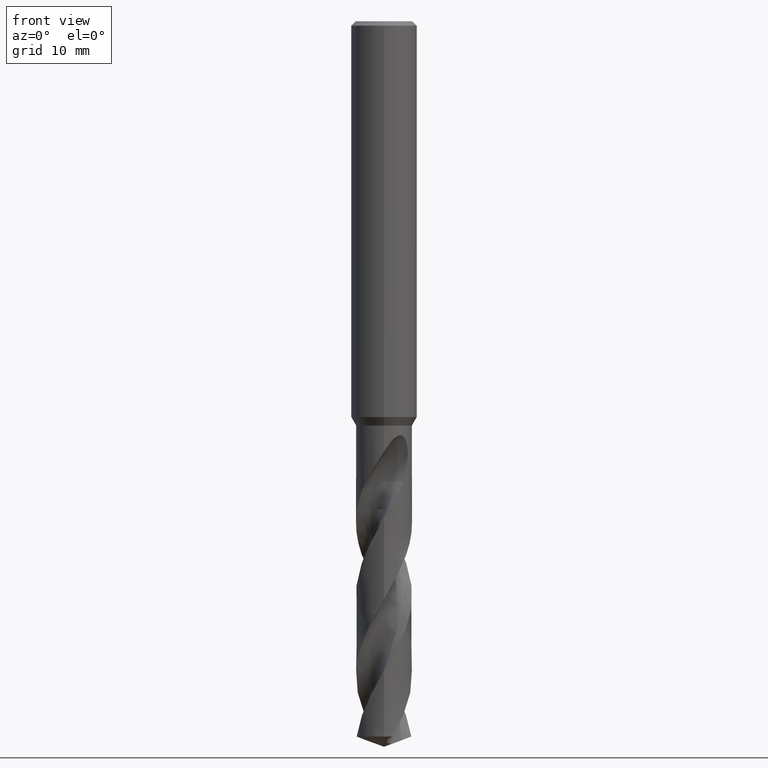
[diagram: clean part render]
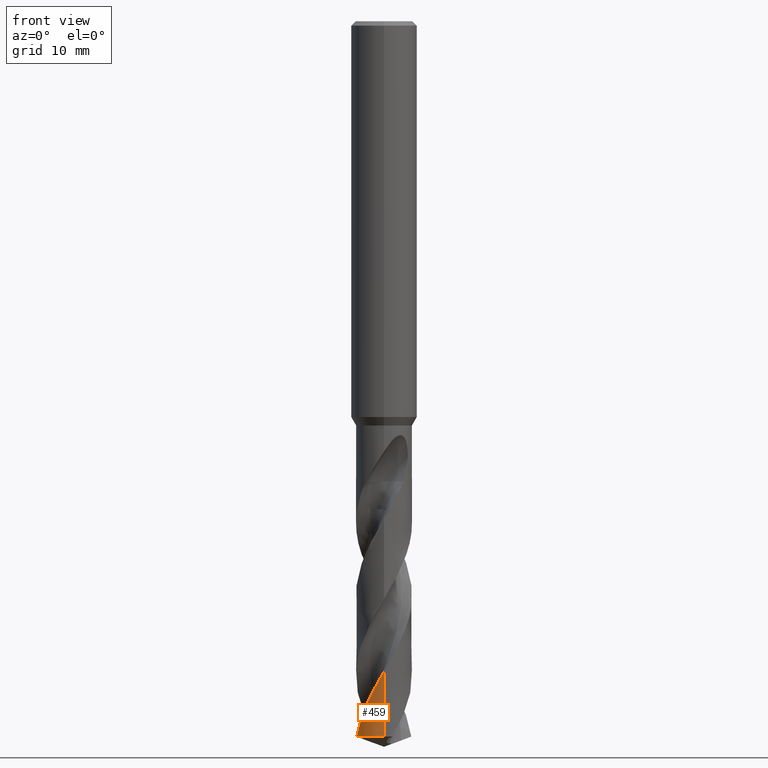
[diagram: same view with one face highlighted and labeled with its STEP entity id]
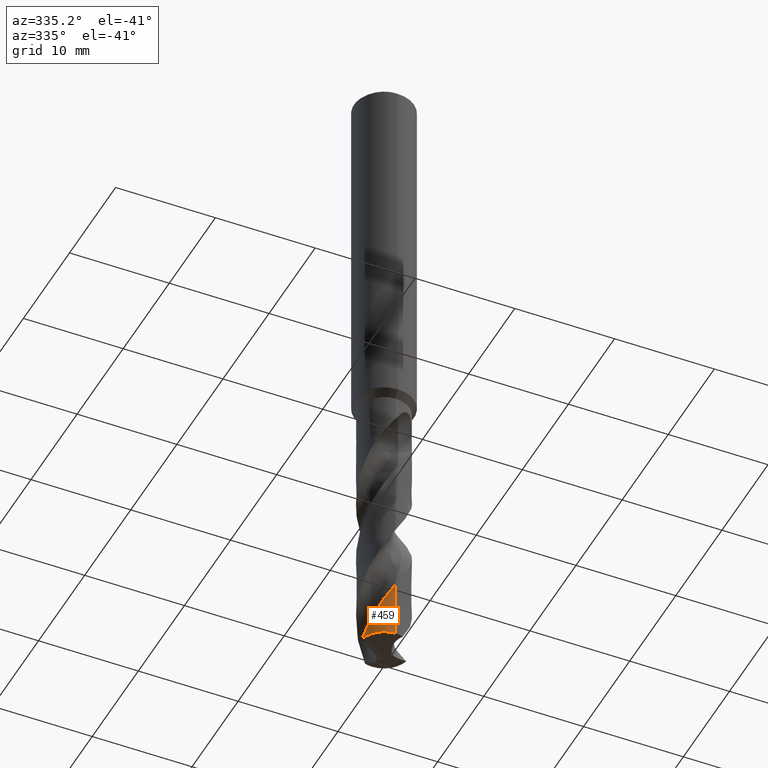
[diagram: same view with one face highlighted and labeled with its STEP entity id]
A machine part, front view. The second image highlights one B-rep face of the part: STEP entity #459.
A second angle (auxiliary view) of the same face is appended — the face is thin or edge-on in the first view.
In plain terms, the highlighted conical surface has half-angle 0 deg.
Its self-contained STEP definition (entity closure, byte-faithful):
#331=VERTEX_POINT('',#857);
#427=VERTEX_POINT('',#962);
#459=ADVANCED_FACE('',(#996),#997,.T.);
#525=EDGE_CURVE('',#331,#667,#1069,.T.);
#657=EDGE_CURVE('',#331,#427,#1219,.T.);
#667=VERTEX_POINT('',#1229);
#691=EDGE_CURVE('',#427,#667,#1256,.T.);
#857=CARTESIAN_POINT('',(3.12274620224706E-016,-2.55,-65.0718759026212));
#962=CARTESIAN_POINT('',(-1.62016764018776E-015,-2.54997127921081,-59.1347500021574));
#996=FACE_OUTER_BOUND('',#3672,.T.);
#997=CONICAL_SURFACE('',#3673,2.54995,4.83749034052352E-006);
#1069=CIRCLE('',#4198,2.55);
#1219=LINE('',#5707,#5708);
#1229=CARTESIAN_POINT('',(-2.48497970854249,-0.572167674840237,-65.0718759026212));
#1256=B_SPLINE_CURVE_WITH_KNOTS('',3,(#6222,#6223,#6224,#6225,#6226,#6227,#6228,#6229,#6230,#6231,#6232,#6233,#6234,#6235,#6236,#6237,#6238,#6239,#6240,#6241,#6242,#6243,#6244,#6245,#6246,#6247,#6248,#6249,#6250,#6251,#6252,#6253,#6254,#6255,#6256,#6257,#6258,#6259,#6260,#6261,#6262,#6263,#6264,#6265,#6266,#6267,#6268,#6269,#6270,#6271,#6272,#6273,#6274,#6275,#6276,#6277,#6278,#6279),.UNSPECIFIED.,.F.,.F.,(4,2,2,2,2,2,2,2,2,2,2,2,2,2,2,2,2,2,2,2,2,2,2,2,2,2,2,2,4),(0.0,0.904595376409734,1.93838786459377,2.92163758824237,3.91194730940029,4.15071126324412,5.0106353044713,5.50711745147644,5.996456555101,6.97608884258479,7.96485159304592,8.95029012252816,9.44091576198877,10.4734855307966,11.4615583465464,12.447010891369,12.9372804684334,13.9071458155086,14.8969134462882,15.8810176152042,16.8602019877819,17.7334736815047,18.1138178261376,19.5373381391519,20.0747924207916,21.0211814780108,21.7329142797116,22.7997396179062,23.8685175773681),.UNSPECIFIED.);
#3672=EDGE_LOOP('',(#7460,#7461,#7462));
#3673=AXIS2_PLACEMENT_3D('',#7463,#7464,#7465);
#4198=AXIS2_PLACEMENT_3D('',#7532,#7533,#7534);
#5707=CARTESIAN_POINT('',(3.12375792559309E-016,-2.54995,-54.7359379513106));
#5708=VECTOR('',#7755,1.0);
#6222=CARTESIAN_POINT('',(-0.492301017395344,2.50192522350578,-44.4042862558919));
#6223=CARTESIAN_POINT('',(-0.344178322945891,2.53107244669452,-44.6653064245351));
#6224=CARTESIAN_POINT('',(-0.193929190382038,2.54697575884056,-44.9258241065054));
#6225=CARTESIAN_POINT('',(0.128809494830351,2.55246164496695,-45.4855873433931));
#6226=CARTESIAN_POINT('',(0.300927942916833,2.53795103824694,-45.7835310996424));
#6227=CARTESIAN_POINT('',(0.631566782055325,2.47589478541863,-46.3657358487347));
#6228=CARTESIAN_POINT('',(0.789402950107921,2.43017478561917,-46.6487402689001));
#6229=CARTESIAN_POINT('',(1.09511162156632,2.30868755434239,-47.2185507735106));
#6230=CARTESIAN_POINT('',(1.24227180952646,2.23295870219164,-47.5037021800001));
#6231=CARTESIAN_POINT('',(1.41458084217042,2.12193826038591,-47.858491615802));
#6232=CARTESIAN_POINT('',(1.4475352444559,2.09959594192681,-47.9273872513592));
#6233=CARTESIAN_POINT('',(1.59669145569391,1.99329189326123,-48.2446156104271));
#6234=CARTESIAN_POINT('',(1.70621966099023,1.90038429845252,-48.4927746077231));
#6235=CARTESIAN_POINT('',(1.86574891082975,1.74009581742481,-48.8844404282418));
#6236=CARTESIAN_POINT('',(1.92126584507662,1.67860100499183,-49.0276801991696));
#6237=CARTESIAN_POINT('',(2.02539156893786,1.55131035983013,-49.3122825734574));
#6238=CARTESIAN_POINT('',(2.07399443604422,1.48570442546733,-49.4533816935031));
#6239=CARTESIAN_POINT('',(2.2101793165145,1.28214975517026,-49.877593336657));
#6240=CARTESIAN_POINT('',(2.28777049318113,1.13795339799935,-50.1601237662392));
#6241=CARTESIAN_POINT('',(2.41489551526079,0.83523975907893,-50.7285202072127));
#6242=CARTESIAN_POINT('',(2.46382894688696,0.67739575498896,-51.0130907412587));
#6243=CARTESIAN_POINT('',(2.53042245163434,0.35512254535974,-51.583306713123));
#6244=CARTESIAN_POINT('',(2.54805651396703,0.19134709266067,-51.867309977371));
#6245=CARTESIAN_POINT('',(2.55066076771163,-0.0549086122669067,-52.2935231624361));
#6246=CARTESIAN_POINT('',(2.54758460176799,-0.136729117313688,-52.4350098139327));
#6247=CARTESIAN_POINT('',(2.5258466679698,-0.389804169407478,-52.8749414599381));
#6248=CARTESIAN_POINT('',(2.49376578970697,-0.559476488858803,-53.1727591692876));
#6249=CARTESIAN_POINT('',(2.39796984515299,-0.882685822676814,-53.7563394092064));
#6250=CARTESIAN_POINT('',(2.33592839386348,-1.03576208291366,-54.0407681815669));
#6251=CARTESIAN_POINT('',(2.18344771290727,-1.32732474063662,-54.610888969515));
#6252=CARTESIAN_POINT('',(2.09338115001778,-1.46528014419916,-54.8949392200762));
#6253=CARTESIAN_POINT('',(1.93947981665815,-1.65751942325476,-55.3211283433562));
#6254=CARTESIAN_POINT('',(1.88532356352634,-1.71886712443186,-55.4625400066255));
#6255=CARTESIAN_POINT('',(1.71556941253617,-1.89347844835062,-55.8843383929728));
#6256=CARTESIAN_POINT('',(1.59200499316282,-1.99849605374424,-56.164185881134));
#6257=CARTESIAN_POINT('',(1.3238787860521,-2.18561456830833,-56.7302550031949));
#6258=CARTESIAN_POINT('',(1.1796360337102,-2.26671592474935,-57.0151565529123));
#6259=CARTESIAN_POINT('',(0.878452190917358,-2.39949311708696,-57.585470579888));
#6260=CARTESIAN_POINT('',(0.722185425316788,-2.45107062291155,-57.8692262725048));
#6261=CARTESIAN_POINT('',(0.402572091848025,-2.52328746598458,-58.4363317221513));
#6262=CARTESIAN_POINT('',(0.240135043374938,-2.54388330470384,-58.7185416064399));
#6263=CARTESIAN_POINT('',(-0.0686434853795442,-2.55320429856017,-59.2537894917376));
#6264=CARTESIAN_POINT('',(-0.214377174392004,-2.54512273046249,-59.5055917840789));
#6265=CARTESIAN_POINT('',(-0.421534610130549,-2.51569278044948,-59.8677009006145));
#6266=CARTESIAN_POINT('',(-0.484012710661114,-2.50442259624439,-59.9774673000797));
#6267=CARTESIAN_POINT('',(-0.777982362679796,-2.43998646384887,-60.4986336434843));
#6268=CARTESIAN_POINT('',(-1.00183297157756,-2.35694838814648,-60.9084320013612));
#6269=CARTESIAN_POINT('',(-1.28993890927062,-2.20148121870971,-61.4749446308585));
#6270=CARTESIAN_POINT('',(-1.36655725330742,-2.15475569089569,-61.6300776655338));
#6271=CARTESIAN_POINT('',(-1.57077515766016,-2.01494596840058,-62.0589126378159));
#6272=CARTESIAN_POINT('',(-1.6925109262753,-1.91384153161916,-62.3319952397731));
#6273=CARTESIAN_POINT('',(-1.88809131083338,-1.71804155917468,-62.8111096431838));
#6274=CARTESIAN_POINT('',(-1.96605529022698,-1.62824461192557,-63.0163696959398));
#6275=CARTESIAN_POINT('',(-2.14451497101899,-1.39111715500031,-63.5303372864517));
#6276=CARTESIAN_POINT('',(-2.23641709927531,-1.23800223531189,-63.8378221863508));
#6277=CARTESIAN_POINT('',(-2.38698107871075,-0.914693297128274,-64.4548072615058));
#6278=CARTESIAN_POINT('',(-2.445036180673,-0.745639627737795,-64.7628269882436));
#6279=CARTESIAN_POINT('',(-2.48497970854249,-0.572167674840248,-65.0718759026212));
#7460=ORIENTED_EDGE('',*,*,#657,.T.);
#7461=ORIENTED_EDGE('',*,*,#691,.T.);
#7462=ORIENTED_EDGE('',*,*,#525,.F.);
#7463=CARTESIAN_POINT('',(0.0,0.0,-54.7359379513106));
#7464=DIRECTION('',(0.0,-0.0,-1.0));
#7465=DIRECTION('',(0.0,1.0,0.0));
#7532=CARTESIAN_POINT('',(0.0,0.0,-65.0718759026212));
#7533=DIRECTION('',(0.0,0.0,-1.0));
#7534=DIRECTION('',(0.0,1.0,0.0));
#7755=DIRECTION('',(-5.92402140753638E-022,4.83749034050466E-006,0.999999999988299));